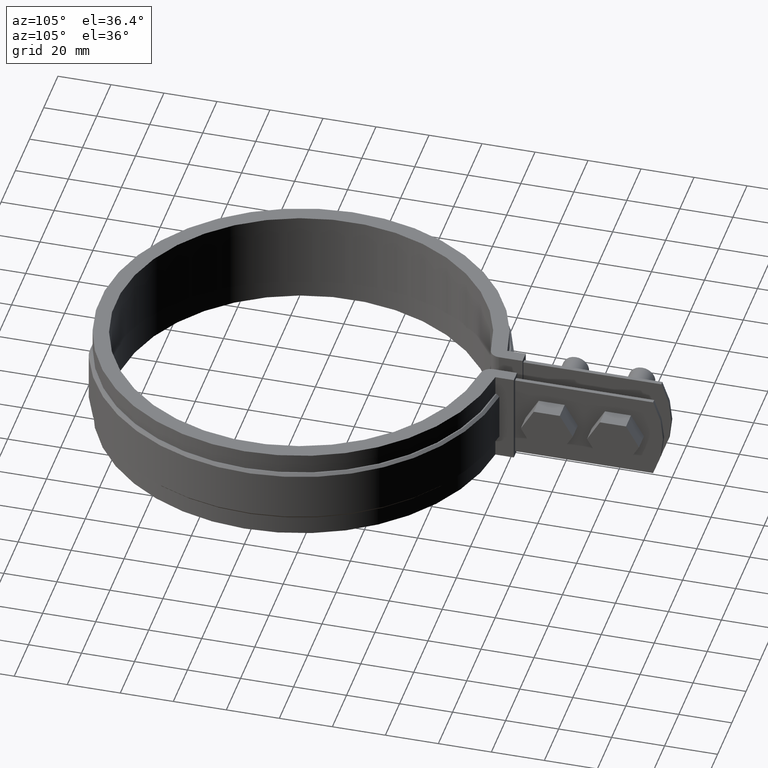
[diagram: clean part render]
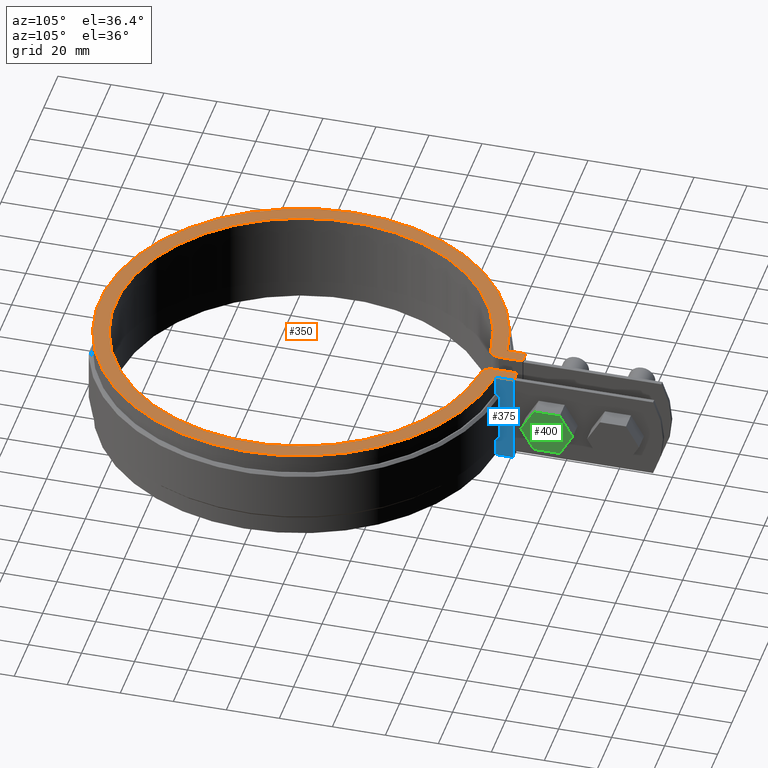
[diagram: same view with three faces highlighted in distinct colors, each labeled with its STEP entity id]
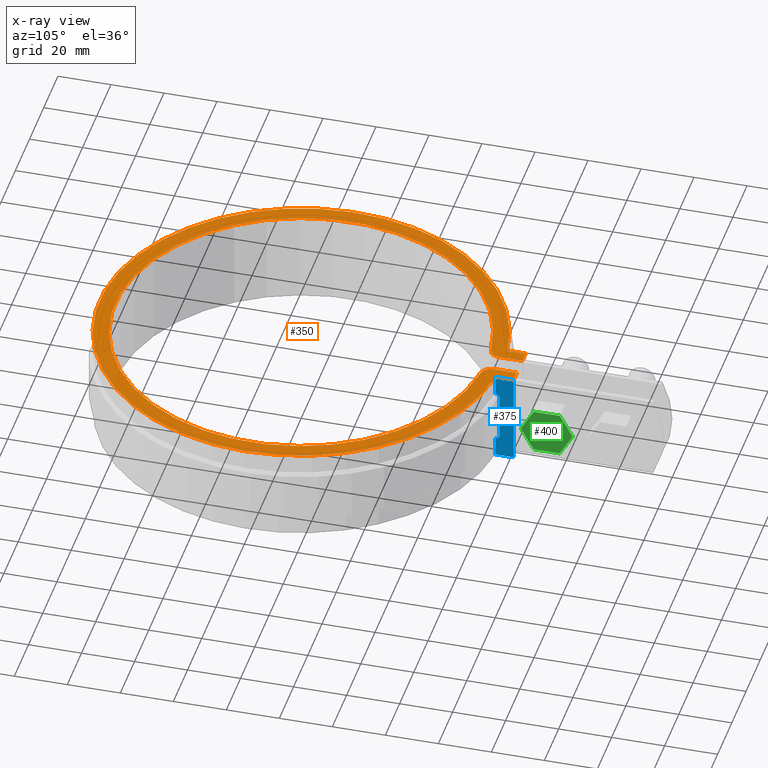
[diagram: x-ray of the same camera — body ghosted, the three highlighted faces saturated]
A machine part, auxiliary view with three faces highlighted in distinct colors.
The next image is the same camera in x-ray (body ghosted, the three faces saturated) — at least one of them is partly hidden behind the body in this view.
Their STEP definitions:

[orange] entity #350 — the highlighted planar face has unit normal (0, 0, 1).
#350 = ADVANCED_FACE( '', ( #550 ), #551, .T. );
#550 = FACE_OUTER_BOUND( '', #1255, .T. );
#551 = PLANE( '', #1256 );
#1255 = EDGE_LOOP( '', ( #2958, #2959, #2960, #2961, #2962, #2963, #2964, #2965, #2966, #2967 ) );
#1256 = AXIS2_PLACEMENT_3D( '', #2968, #2969, #2970 );
#2958 = ORIENTED_EDGE( '', *, *, #4754, .T. );
#2959 = ORIENTED_EDGE( '', *, *, #4706, .T. );
#2960 = ORIENTED_EDGE( '', *, *, #4756, .T. );
#2961 = ORIENTED_EDGE( '', *, *, #4757, .T. );
#2962 = ORIENTED_EDGE( '', *, *, #4758, .T. );
#2963 = ORIENTED_EDGE( '', *, *, #4759, .T. );
#2964 = ORIENTED_EDGE( '', *, *, #4760, .T. );
#2965 = ORIENTED_EDGE( '', *, *, #4714, .T. );
#2966 = ORIENTED_EDGE( '', *, *, #4726, .T. );
#2967 = ORIENTED_EDGE( '', *, *, #4761, .T. );
#2968 = CARTESIAN_POINT( '', ( 0.000000000000000, 0.000000000000000, 1.50000000000000 ) );
#2969 = DIRECTION( '', ( 0.000000000000000, 0.000000000000000, 1.00000000000000 ) );
#2970 = DIRECTION( '', ( 1.00000000000000, 0.000000000000000, 0.000000000000000 ) );
#4706 = EDGE_CURVE( '', #5180, #5181, #5182, .T. );
#4714 = EDGE_CURVE( '', #5196, #5197, #5198, .T. );
#4726 = EDGE_CURVE( '', #5197, #5218, #5219, .F. );
#4754 = EDGE_CURVE( '', #5271, #5180, #5272, .T. );
#4756 = EDGE_CURVE( '', #5181, #5274, #5275, .T. );
#4757 = EDGE_CURVE( '', #5274, #5276, #5277, .T. );
#4758 = EDGE_CURVE( '', #5276, #5278, #5279, .T. );
#4759 = EDGE_CURVE( '', #5278, #5280, #5281, .T. );
#4760 = EDGE_CURVE( '', #5280, #5196, #5282, .T. );
#4761 = EDGE_CURVE( '', #5218, #5271, #5283, .T. );
#5180 = VERTEX_POINT( '', #6792 );
#5181 = VERTEX_POINT( '', #6793 );
#5182 = LINE( '', #6794, #6795 );
#5196 = VERTEX_POINT( '', #6816 );
#5197 = VERTEX_POINT( '', #6817 );
#5198 = CIRCLE( '', #6818, 4.00000000000000 );
#5218 = VERTEX_POINT( '', #6845 );
#5219 = CIRCLE( '', #6846, 70.0000000000000 );
#5271 = VERTEX_POINT( '', #7239 );
#5272 = LINE( '', #7240, #7241 );
#5274 = VERTEX_POINT( '', #7244 );
#5275 = LINE( '', #7245, #7246 );
#5276 = VERTEX_POINT( '', #7247 );
#5277 = CIRCLE( '', #7248, 76.0000000000000 );
#5278 = VERTEX_POINT( '', #7249 );
#5279 = LINE( '', #7250, #7251 );
#5280 = VERTEX_POINT( '', #7252 );
#5281 = LINE( '', #7253, #7254 );
#5282 = LINE( '', #7255, #7256 );
#5283 = CIRCLE( '', #7257, 4.00000000000000 );
#6792 = CARTESIAN_POINT( '', ( -3.80000000000000, 82.5000000000000, 1.50000000000000 ) );
#6793 = CARTESIAN_POINT( '', ( -8.40000000000000, 82.5000000000000, 1.50000000000000 ) );
#6794 = CARTESIAN_POINT( '', ( 0.000000000000000, 82.5000000000000, 1.50000000000000 ) );
#6795 = VECTOR( '', #8625, 1000.00000000000 );
#6816 = CARTESIAN_POINT( '', ( 3.80000000000000, 73.5877707231304, 1.50000000000000 ) );
#6817 = CARTESIAN_POINT( '', ( 7.37837837837834, 69.6100533867449, 1.50000000000000 ) );
#6818 = AXIS2_PLACEMENT_3D( '', #8633, #8634, #8635 );
#6845 = CARTESIAN_POINT( '', ( -7.37837837837835, 69.6100533867449, 1.50000000000000 ) );
#6846 = AXIS2_PLACEMENT_3D( '', #8655, #8656, #8657 );
#7239 = CARTESIAN_POINT( '', ( -3.80000000000000, 73.5877707231304, 1.50000000000000 ) );
#7240 = CARTESIAN_POINT( '', ( -3.80000000000000, 2.34521269925326E-016, 1.50000000000000 ) );
#7241 = VECTOR( '', #8671, 1000.00000000000 );
#7244 = CARTESIAN_POINT( '', ( -8.40000000000000, 75.5343630409365, 1.50000000000000 ) );
#7245 = CARTESIAN_POINT( '', ( -8.40000000000001, 5.04404210707103E-016, 1.50000000000000 ) );
#7246 = VECTOR( '', #8673, 1000.00000000000 );
#7247 = CARTESIAN_POINT( '', ( 8.39999999999999, 75.5343630409365, 1.50000000000000 ) );
#7248 = AXIS2_PLACEMENT_3D( '', #8674, #8675, #8676 );
#7249 = CARTESIAN_POINT( '', ( 8.39999999999999, 82.5000000000000, 1.50000000000000 ) );
#7250 = CARTESIAN_POINT( '', ( 8.39999999999998, -5.60449123007891E-016, 1.50000000000000 ) );
#7251 = VECTOR( '', #8677, 1000.00000000000 );
#7252 = CARTESIAN_POINT( '', ( 3.80000000000000, 82.5000000000000, 1.50000000000000 ) );
#7253 = CARTESIAN_POINT( '', ( 0.000000000000000, 82.5000000000000, 1.50000000000000 ) );
#7254 = VECTOR( '', #8678, 1000.00000000000 );
#7255 = CARTESIAN_POINT( '', ( 3.80000000000000, -2.28182857224641E-016, 1.50000000000000 ) );
#7256 = VECTOR( '', #8679, 1000.00000000000 );
#7257 = AXIS2_PLACEMENT_3D( '', #8680, #8681, #8682 );
#8625 = DIRECTION( '', ( -1.00000000000000, 0.000000000000000, 0.000000000000000 ) );
#8633 = CARTESIAN_POINT( '', ( 7.80000000000000, 73.5877707231303, 1.50000000000000 ) );
#8634 = DIRECTION( '', ( 0.000000000000000, 0.000000000000000, 1.00000000000000 ) );
#8635 = DIRECTION( '', ( 1.00000000000000, 0.000000000000000, 0.000000000000000 ) );
#8655 = CARTESIAN_POINT( '', ( 0.000000000000000, 0.000000000000000, 1.50000000000000 ) );
#8656 = DIRECTION( '', ( 0.000000000000000, 0.000000000000000, 1.00000000000000 ) );
#8657 = DIRECTION( '', ( 1.00000000000000, 0.000000000000000, 0.000000000000000 ) );
#8671 = DIRECTION( '', ( 6.17161236645595E-017, 1.00000000000000, 0.000000000000000 ) );
#8673 = DIRECTION( '', ( -6.00481203222741E-017, -1.00000000000000, 0.000000000000000 ) );
#8674 = CARTESIAN_POINT( '', ( 0.000000000000000, 0.000000000000000, 1.50000000000000 ) );
#8675 = DIRECTION( '', ( 0.000000000000000, 0.000000000000000, 1.00000000000000 ) );
#8676 = DIRECTION( '', ( 1.00000000000000, 0.000000000000000, 0.000000000000000 ) );
#8677 = DIRECTION( '', ( 6.67201336914157E-017, 1.00000000000000, 0.000000000000000 ) );
#8678 = DIRECTION( '', ( -1.00000000000000, 0.000000000000000, 0.000000000000000 ) );
#8679 = DIRECTION( '', ( -6.00481203222741E-017, -1.00000000000000, 0.000000000000000 ) );
#8680 = CARTESIAN_POINT( '', ( -7.80000000000000, 73.5877707231304, 1.50000000000000 ) );
#8681 = DIRECTION( '', ( 0.000000000000000, 0.000000000000000, 1.00000000000000 ) );
#8682 = DIRECTION( '', ( 1.00000000000000, 0.000000000000000, 0.000000000000000 ) );

[blue] entity #375 — the highlighted planar face has unit normal (1, -0, 0).
#375 = ADVANCED_FACE( '', ( #601 ), #602, .T. );
#601 = FACE_OUTER_BOUND( '', #1679, .T. );
#602 = PLANE( '', #1680 );
#1679 = EDGE_LOOP( '', ( #3568, #3569, #3570, #3571, #3572, #3573, #3574, #3575, #3576, #3577 ) );
#1680 = AXIS2_PLACEMENT_3D( '', #3578, #3579, #3580 );
#3568 = ORIENTED_EDGE( '', *, *, #4853, .F. );
#3569 = ORIENTED_EDGE( '', *, *, #4854, .T. );
#3570 = ORIENTED_EDGE( '', *, *, #4855, .T. );
#3571 = ORIENTED_EDGE( '', *, *, #4839, .F. );
#3572 = ORIENTED_EDGE( '', *, *, #4723, .T. );
#3573 = ORIENTED_EDGE( '', *, *, #4856, .T. );
#3574 = ORIENTED_EDGE( '', *, *, #4758, .F. );
#3575 = ORIENTED_EDGE( '', *, *, #4833, .F. );
#3576 = ORIENTED_EDGE( '', *, *, #4821, .F. );
#3577 = ORIENTED_EDGE( '', *, *, #4844, .T. );
#3578 = CARTESIAN_POINT( '', ( 8.39999999999999, 75.5343630409366, -33.5000000000000 ) );
#3579 = DIRECTION( '', ( 1.00000000000000, -6.67201336914157E-017, 0.000000000000000 ) );
#3580 = DIRECTION( '', ( 0.000000000000000, 0.000000000000000, 1.00000000000000 ) );
#4723 = EDGE_CURVE( '', #5213, #5211, #5214, .F. );
#4758 = EDGE_CURVE( '', #5276, #5278, #5279, .T. );
#4821 = EDGE_CURVE( '', #5387, #5382, #5389, .T. );
#4833 = EDGE_CURVE( '', #5382, #5276, #5408, .F. );
#4839 = EDGE_CURVE( '', #5213, #5399, #5417, .F. );
#4844 = EDGE_CURVE( '', #5387, #5424, #5425, .F. );
#4853 = EDGE_CURVE( '', #5438, #5424, #5439, .F. );
#4854 = EDGE_CURVE( '', #5438, #5440, #5441, .F. );
#4855 = EDGE_CURVE( '', #5440, #5399, #5442, .F. );
#4856 = EDGE_CURVE( '', #5211, #5278, #5443, .T. );
#5211 = VERTEX_POINT( '', #6835 );
#5213 = VERTEX_POINT( '', #6838 );
#5214 = LINE( '', #6839, #6840 );
#5276 = VERTEX_POINT( '', #7247 );
#5278 = VERTEX_POINT( '', #7249 );
#5279 = LINE( '', #7250, #7251 );
#5382 = VERTEX_POINT( '', #7908 );
#5387 = VERTEX_POINT( '', #7913 );
#5389 = LINE( '', #7915, #7916 );
#5399 = VERTEX_POINT( '', #7931 );
#5408 = LINE( '', #7949, #7950 );
#5417 = LINE( '', #7964, #7965 );
#5424 = VERTEX_POINT( '', #7974 );
#5425 = B_SPLINE_CURVE_WITH_KNOTS( '', 3, ( #7975, #7976, #7977, #7978 ), .UNSPECIFIED., .F., .F., ( 4, 4 ), ( 706.997502694601, 706.998921160348 ), .UNSPECIFIED. );
#5438 = VERTEX_POINT( '', #7995 );
#5439 = LINE( '', #7996, #7997 );
#5440 = VERTEX_POINT( '', #7998 );
#5441 = B_SPLINE_CURVE_WITH_KNOTS( '', 3, ( #7999, #8000, #8001, #8002 ), .UNSPECIFIED., .F., .F., ( 4, 4 ), ( 707.205411715784, 707.206842214378 ), .UNSPECIFIED. );
#5442 = LINE( '', #8003, #8004 );
#5443 = LINE( '', #8005, #8006 );
#6835 = CARTESIAN_POINT( '', ( 8.39999999999999, 82.5000000000000, -33.5000000000000 ) );
#6838 = CARTESIAN_POINT( '', ( 8.39999999999999, 75.5343630409365, -33.5000000000000 ) );
#6839 = CARTESIAN_POINT( '', ( 8.39999999999999, 75.5343630409366, -33.5000000000000 ) );
#6840 = VECTOR( '', #8650, 1000.00000000000 );
#7247 = CARTESIAN_POINT( '', ( 8.39999999999999, 75.5343630409365, 1.50000000000000 ) );
#7249 = CARTESIAN_POINT( '', ( 8.39999999999999, 82.5000000000000, 1.50000000000000 ) );
#7250 = CARTESIAN_POINT( '', ( 8.39999999999998, -5.60449123007891E-016, 1.50000000000000 ) );
#7251 = VECTOR( '', #8677, 1000.00000000000 );
#7908 = CARTESIAN_POINT( '', ( 8.39999999999999, 75.5343630409366, -6.00000000000000 ) );
#7913 = CARTESIAN_POINT( '', ( 8.39999999999999, 76.0374249958532, -6.00000000000000 ) );
#7915 = CARTESIAN_POINT( '', ( 8.39999999999998, -59.5000000000000, -6.00000000000000 ) );
#7916 = VECTOR( '', #8749, 1000.00000000000 );
#7931 = CARTESIAN_POINT( '', ( 8.39999999999999, 75.5343630409365, -26.0000000000000 ) );
#7949 = CARTESIAN_POINT( '', ( 8.39999999999999, 75.5343630409365, -33.5000000000000 ) );
#7950 = VECTOR( '', #8772, 1000.00000000000 );
#7964 = CARTESIAN_POINT( '', ( 8.39999999999999, 75.5343630409365, -33.5000000000000 ) );
#7965 = VECTOR( '', #8783, 1000.00000000000 );
#7974 = CARTESIAN_POINT( '', ( 8.39999999999999, 77.0434293110062, -7.00000000000002 ) );
#7975 = CARTESIAN_POINT( '', ( 8.39999999999999, 77.0434293109788, -6.99999999997280 ) );
#7976 = CARTESIAN_POINT( '', ( 8.39999999999999, 76.7081074965679, -6.66665364506959 ) );
#7977 = CARTESIAN_POINT( '', ( 8.39999999999999, 76.3727728952687, -6.33332014051405 ) );
#7978 = CARTESIAN_POINT( '', ( 8.39999999999999, 76.0374249958888, -6.00000000003538 ) );
#7995 = CARTESIAN_POINT( '', ( 8.39999999999999, 77.0434293110062, -25.0000000000000 ) );
#7996 = CARTESIAN_POINT( '', ( 8.39999999999999, 77.0434293110062, -26.0000000000000 ) );
#7997 = VECTOR( '', #8808, 1000.00000000000 );
#7998 = CARTESIAN_POINT( '', ( 8.39999999999999, 76.0374249958532, -26.0000000000000 ) );
#7999 = CARTESIAN_POINT( '', ( 8.39999999999999, 76.0374249958168, -26.0000000000362 ) );
#8000 = CARTESIAN_POINT( '', ( 8.39999999999999, 76.3727728767412, -25.6666798779014 ) );
#8001 = CARTESIAN_POINT( '', ( 8.39999999999999, 76.7081074783135, -25.3333463730773 ) );
#8002 = CARTESIAN_POINT( '', ( 8.39999999999999, 77.0434293110018, -25.0000000000043 ) );
#8003 = CARTESIAN_POINT( '', ( 8.39999999999999, 75.5343630409366, -26.0000000000000 ) );
#8004 = VECTOR( '', #8809, 1000.00000000000 );
#8005 = CARTESIAN_POINT( '', ( 8.39999999999999, 82.5000000000000, -33.5000000000000 ) );
#8006 = VECTOR( '', #8810, 1000.00000000000 );
#8650 = DIRECTION( '', ( -6.67201336914157E-017, -1.00000000000000, 0.000000000000000 ) );
#8677 = DIRECTION( '', ( 6.67201336914157E-017, 1.00000000000000, 0.000000000000000 ) );
#8749 = DIRECTION( '', ( -6.67201336914157E-017, -1.00000000000000, 0.000000000000000 ) );
#8772 = DIRECTION( '', ( 0.000000000000000, 0.000000000000000, -1.00000000000000 ) );
#8783 = DIRECTION( '', ( 0.000000000000000, 0.000000000000000, -1.00000000000000 ) );
#8808 = DIRECTION( '', ( 0.000000000000000, 0.000000000000000, -1.00000000000000 ) );
#8809 = DIRECTION( '', ( 6.67201336914157E-017, 1.00000000000000, 0.000000000000000 ) );
#8810 = DIRECTION( '', ( 0.000000000000000, 0.000000000000000, 1.00000000000000 ) );

[green] entity #400 — the highlighted planar face has unit normal (-1, -0, 0).
#400 = ADVANCED_FACE( '', ( #653 ), #654, .F. );
#653 = FACE_OUTER_BOUND( '', #1731, .T. );
#654 = PLANE( '', #1732 );
#1731 = EDGE_LOOP( '', ( #4144, #4145, #4146, #4147, #4148, #4149 ) );
#1732 = AXIS2_PLACEMENT_3D( '', #4150, #4151, #4152 );
#4144 = ORIENTED_EDGE( '', *, *, #4888, .T. );
#4145 = ORIENTED_EDGE( '', *, *, #4889, .T. );
#4146 = ORIENTED_EDGE( '', *, *, #4890, .T. );
#4147 = ORIENTED_EDGE( '', *, *, #4884, .T. );
#4148 = ORIENTED_EDGE( '', *, *, #4887, .T. );
#4149 = ORIENTED_EDGE( '', *, *, #4891, .T. );
#4150 = CARTESIAN_POINT( '', ( 13.4999999999983, 81.5749488431168, -24.4999999999989 ) );
#4151 = DIRECTION( '', ( -1.00000000000000, -6.02334540269725E-017, 3.23117426778566E-033 ) );
#4152 = DIRECTION( '', ( -6.02334540269725E-017, 1.00000000000000, 0.000000000000000 ) );
#4884 = EDGE_CURVE( '', #5482, #5480, #5483, .T. );
#4887 = EDGE_CURVE( '', #5480, #5485, #5487, .T. );
#4888 = EDGE_CURVE( '', #5488, #5489, #5490, .T. );
#4889 = EDGE_CURVE( '', #5489, #5491, #5492, .T. );
#4890 = EDGE_CURVE( '', #5491, #5482, #5493, .T. );
#4891 = EDGE_CURVE( '', #5485, #5488, #5494, .T. );
#5480 = VERTEX_POINT( '', #8103 );
#5482 = VERTEX_POINT( '', #8106 );
#5483 = LINE( '', #8107, #8108 );
#5485 = VERTEX_POINT( '', #8111 );
#5487 = LINE( '', #8114, #8115 );
#5488 = VERTEX_POINT( '', #8116 );
#5489 = VERTEX_POINT( '', #8117 );
#5490 = LINE( '', #8118, #8119 );
#5491 = VERTEX_POINT( '', #8120 );
#5492 = LINE( '', #8121, #8122 );
#5493 = LINE( '', #8123, #8124 );
#5494 = LINE( '', #8125, #8126 );
#8103 = CARTESIAN_POINT( '', ( 13.4999999999983, 91.3899034193368, -7.50000000000103 ) );
#8106 = CARTESIAN_POINT( '', ( 13.4999999999983, 101.204857995557, -7.50000000000103 ) );
#8107 = CARTESIAN_POINT( '', ( 13.4999999999983, 101.204857995557, -7.50000000000103 ) );
#8108 = VECTOR( '', #8853, 1000.00000000000 );
#8111 = CARTESIAN_POINT( '', ( 13.4999999999983, 86.4824261312268, -16.0000000000000 ) );
#8114 = CARTESIAN_POINT( '', ( 13.4999999999983, 91.3899034193368, -7.50000000000103 ) );
#8115 = VECTOR( '', #8856, 1000.00000000000 );
#8116 = CARTESIAN_POINT( '', ( 13.4999999999983, 91.3899034193368, -24.4999999999990 ) );
#8117 = CARTESIAN_POINT( '', ( 13.4999999999983, 101.204857995557, -24.4999999999990 ) );
#8118 = CARTESIAN_POINT( '', ( 13.4999999999983, 91.3899034193368, -24.4999999999990 ) );
#8119 = VECTOR( '', #8857, 1000.00000000000 );
#8120 = CARTESIAN_POINT( '', ( 13.4999999999983, 106.112335283667, -16.0000000000000 ) );
#8121 = CARTESIAN_POINT( '', ( 13.4999999999983, 101.204857995557, -24.4999999999990 ) );
#8122 = VECTOR( '', #8858, 1000.00000000000 );
#8123 = CARTESIAN_POINT( '', ( 13.4999999999983, 106.112335283667, -16.0000000000000 ) );
#8124 = VECTOR( '', #8859, 1000.00000000000 );
#8125 = CARTESIAN_POINT( '', ( 13.4999999999983, 86.4824261312268, -16.0000000000000 ) );
#8126 = VECTOR( '', #8860, 1000.00000000000 );
#8853 = DIRECTION( '', ( 6.02334540269725E-017, -1.00000000000000, -1.89911354914636E-065 ) );
#8856 = DIRECTION( '', ( 3.01167270134807E-017, -0.499999999999908, -0.866025403784492 ) );
#8857 = DIRECTION( '', ( -6.02334540269725E-017, 1.00000000000000, -3.33066907387628E-016 ) );
#8858 = DIRECTION( '', ( -3.01167270134807E-017, 0.499999999999908, 0.866025403784492 ) );
#8859 = DIRECTION( '', ( 3.01167270134807E-017, -0.499999999999908, 0.866025403784492 ) );
#8860 = DIRECTION( '', ( -3.01167270134807E-017, 0.499999999999908, -0.866025403784492 ) );